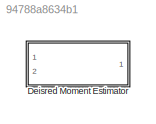
MODEL slx_94788a8634b1
KIND library
CONFIG AbsTol = auto
CONFIG EnableMultiTasking = off
CONFIG FixedStep = auto
CONFIG MaxStep = auto
CONFIG MinStep = auto
CONFIG RelTol = 1e-3
CONFIG SampleTimeConstraint = Unconstrained
CONFIG Solver = VariableStepAuto
CONFIG SolverName = VariableStepAuto
CONFIG StartTime = 0.0
CONFIG StopTime = 10.0
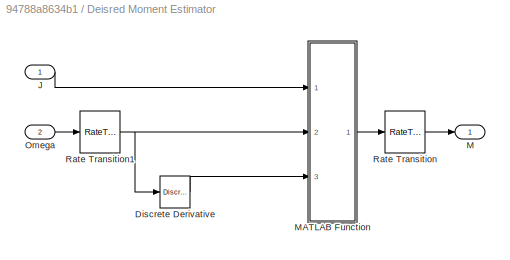
BLOCK [SubSystem] Deisred Moment Estimator
  Ports = [2, 1]
  RequestExecContextInheritance = off
  Variant = off
BLOCK [Reference] Deisred Moment Estimator/Discrete Derivative  REF=simulink/Discrete/Discrete Derivative
  Ports = [1, 1]
  SourceBlock = simulink/Discrete/Discrete Derivative
  SourceProductBaseCode = SL
  SourceProductName = Simulink
  SourceType = Discrete Derivative
BLOCK [Inport] Deisred Moment Estimator/J
  IconDisplay = Port number
BLOCK [Outport] Deisred Moment Estimator/M
  IconDisplay = Port number
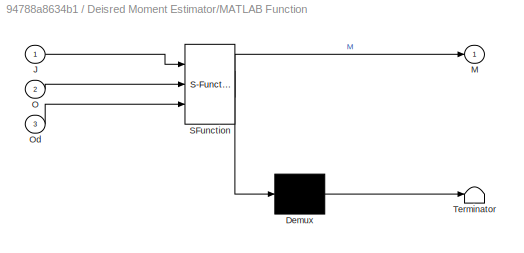
BLOCK [SubSystem] Deisred Moment Estimator/MATLAB Function
  ErrorFcn = Stateflow.Translate.translate
  PermitHierarchicalResolution = ExplicitOnly
  Ports = [3, 1]
  RequestExecContextInheritance = off
  SFBlockType = MATLAB Function
  TreatAsAtomicUnit = on
  Variant = off
BLOCK [Demux] Deisred Moment Estimator/MATLAB Function/ Demux 
  Outputs = 1
  Ports = [1, 1]
BLOCK [S-Function] Deisred Moment Estimator/MATLAB Function/ SFunction 
  EnableBusSupport = off
  FunctionName = sf_sfun
  PortCounts = [3 2]
  Ports = [3, 2]
  SFcnIsStateOwnerBlock = off
  SFunctionDeploymentMode = off
  Tag = Stateflow S-Function NLGCTestSuite 2
BLOCK [Terminator] Deisred Moment Estimator/MATLAB Function/ Terminator 
BLOCK [Inport] Deisred Moment Estimator/MATLAB Function/J
  IconDisplay = Port number
BLOCK [Outport] Deisred Moment Estimator/MATLAB Function/M
  IconDisplay = Port number
BLOCK [Inport] Deisred Moment Estimator/MATLAB Function/O
  IconDisplay = Port number
  Port = 2
BLOCK [Inport] Deisred Moment Estimator/MATLAB Function/Od
  IconDisplay = Port number
  Port = 3
BLOCK [Inport] Deisred Moment Estimator/Omega
  IconDisplay = Port number
  Port = 2
BLOCK [RateTransition] Deisred Moment Estimator/Rate Transition
  OutPortSampleTime = Ts
BLOCK [RateTransition] Deisred Moment Estimator/Rate Transition1
  OutPortSampleTime = Ts
CHART Deisred Moment Estimator/MATLAB Function states=1 transitions=1
  STATE_LABEL 'eML_blk_kernel()'
  STATE_LABEL 'SCRIPT:\nfunction M = fcn(J,O,Od)\nM=dbg_fourth_eqn(J,O,Od)\nend'
